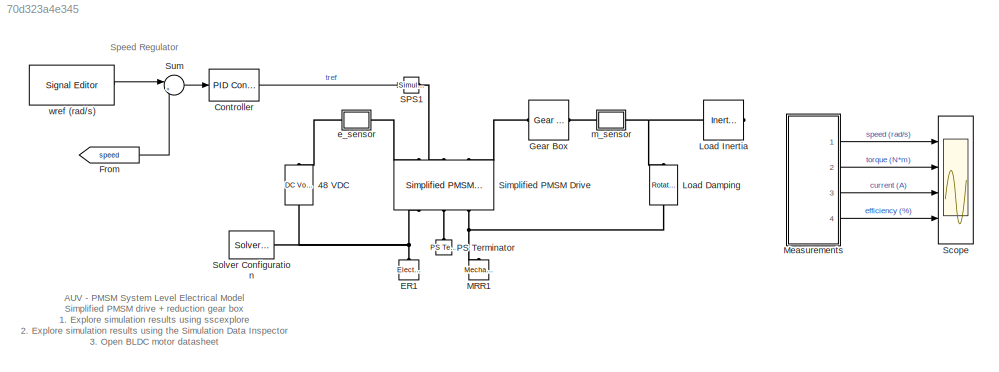
MODEL slx_70d323a4e345
KIND model
CONFIG AbsTol = auto
CONFIG EnableMultiTasking = off
CONFIG FixedStep = auto
CONFIG MaxStep = auto
CONFIG MinStep = auto
CONFIG RelTol = 1e-3
CONFIG SampleTimeConstraint = Unconstrained
CONFIG Solver = ode23t
CONFIG SolverName = ode23t
CONFIG StartTime = 0.0
CONFIG StopTime = 10
BLOCK [Reference] 48 VDC  REF=fl_lib/Electrical/Electrical Sources/DC Voltage Source
  NameLocation = right
  Ports = [0, 0, 0, 0, 0, 1, 1]
  SourceBlock = fl_lib/Electrical/Electrical Sources/DC Voltage Source
  SourceProductBaseCode = SS
  SourceType = DC Voltage Source
BLOCK [Reference] Controller  REF=simulink/Continuous/PID Controller
  Ports = [1, 1]
  SourceBlock = simulink/Continuous/PID Controller
  SourceProductBaseCode = SL
  SourceType = PID 1dof
BLOCK [Reference] ER1  REF=fl_lib/Electrical/Electrical Elements/Electrical Reference
  NameLocation = right
  Ports = [0, 0, 0, 0, 0, 1]
  SourceBlock = fl_lib/Electrical/Electrical Elements/Electrical Reference
  SourceProductName = Foundation Library
  SourceType = Electrical Reference
BLOCK [From] From
  GotoTag = speed
  TagVisibility = global
BLOCK [Reference] Gear Box  REF=fl_lib/Mechanical/Mechanisms/Gear Box
  Ports = [0, 0, 0, 0, 0, 1, 1]
  SourceBlock = fl_lib/Mechanical/Mechanisms/Gear Box
  SourceProductBaseCode = SS
  SourceType = Gear Box
BLOCK [Reference] Load Damping  REF=fl_lib/Mechanical/Rotational Elements/Rotational Damper
  NameLocation = right
  Ports = [0, 0, 0, 0, 0, 1, 1]
  SourceBlock = fl_lib/Mechanical/Rotational Elements/Rotational Damper
  SourceProductBaseCode = SS
  SourceType = Rotational Damper
BLOCK [Reference] Load Inertia  REF=fl_lib/Mechanical/Rotational Elements/Inertia
  Ports = [0, 0, 0, 0, 0, 1]
  SourceBlock = fl_lib/Mechanical/Rotational Elements/Inertia
  SourceProductBaseCode = SS
  SourceType = Inertia
BLOCK [Reference] MRR1  REF=fl_lib/Mechanical/Rotational Elements/Mechanical
Rotational Reference
  NameLocation = right
  Ports = [0, 0, 0, 0, 0, 1]
  SourceBlock = fl_lib/Mechanical/Rotational Elements/Mechanical\nRotational Reference
  SourceProductBaseCode = SS
  SourceType = Mechanical\nRotational Reference
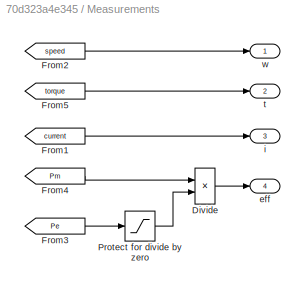
BLOCK [SubSystem] Measurements
  Ports = [0, 4]
  RequestExecContextInheritance = off
BLOCK [Product] Measurements/Divide
  Inputs = */
  Ports = [2, 1]
BLOCK [From] Measurements/From1
  GotoTag = current
  TagVisibility = global
BLOCK [From] Measurements/From2
  GotoTag = speed
  TagVisibility = global
BLOCK [From] Measurements/From3
  GotoTag = Pe
  TagVisibility = global
BLOCK [From] Measurements/From4
  GotoTag = Pm
  TagVisibility = global
BLOCK [From] Measurements/From5
  GotoTag = torque
  TagVisibility = global
BLOCK [Saturate] Measurements/Protect for divide by zero
  LowerLimit = 1e-3
  UpperLimit = inf
BLOCK [Outport] Measurements/eff
  Port = 4
BLOCK [Outport] Measurements/i
  Port = 3
BLOCK [Outport] Measurements/t
  Port = 2
BLOCK [Outport] Measurements/w
BLOCK [Reference] PS Terminator  REF=fl_lib/Physical Signals/Sinks/PS Terminator
  NameLocation = left
  Ports = [0, 0, 0, 0, 0, 1]
  SourceBlock = fl_lib/Physical Signals/Sinks/PS Terminator
  SourceProductBaseCode = SS
  SourceType = PS Terminator
BLOCK [Reference] SPS1  REF=nesl_utility/Simulink-PS
Converter
  Ports = [1, 0, 0, 0, 0, 0, 1]
  SourceBlock = nesl_utility/Simulink-PS\nConverter
  SourceProductBaseCode = SS
  SourceType = Simulink-PS\nConverter
BLOCK [Scope] Scope
  Floating = off
  NumInputPorts = 4
  Ports = [4]
  ScopeSpecificationString = Simulink.scopes.TimeScopeBlockCfg('CurrentConfiguration', extmgr.ConfigurationSet(extmgr.Configuration('Core','General UI',true),extmgr.Configuration('Core','Source UI',true),extmgr.Configuration('Sources','WiredSimulink',true,'DataLoggingVariableName','ScopeData1'),extmgr.Configuration('Visuals','Time Domain',true,'SerializedDisplays',{struct('MinYLimReal','-39.275','MaxYLimReal','39.275','YLabel...<+3504ch>
BLOCK [Reference] Simplified PMSM Drive  REF=ee_lib/Electromechanical/Permanent Magnet/Simplified PMSM
Drive
  NameLocation = right
  Ports = [0, 0, 0, 0, 0, 3, 3]
  SourceBlock = ee_lib/Electromechanical/Permanent Magnet/Simplified PMSM\nDrive
  SourceProductBaseCode = PS
  SourceType = Simplified PMSM\nDrive
BLOCK [Reference] Solver Configuration  REF=nesl_utility/Solver
Configuration
  NameLocation = top
  Ports = [0, 0, 0, 0, 0, 0, 1]
  SourceBlock = nesl_utility/Solver\nConfiguration
  SourceProductBaseCode = SS
  SourceType = Solver\nConfiguration
BLOCK [Sum] Sum
  Inputs = |+-
  Ports = [2, 1]
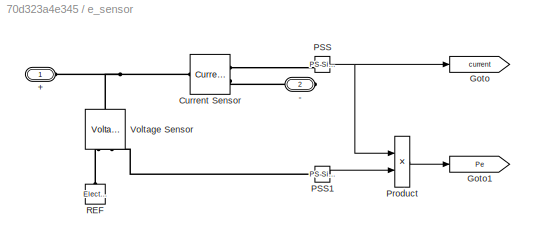
BLOCK [SubSystem] e_sensor
  Ports = [0, 0, 0, 0, 0, 1, 1]
  RequestExecContextInheritance = off
BLOCK [PMIOPort] e_sensor/+
  Side = Left
BLOCK [PMIOPort] e_sensor/-
  Port = 2
  Side = Right
BLOCK [Reference] e_sensor/Current Sensor  REF=fl_lib/Electrical/Electrical Sensors/Current Sensor
  Ports = [0, 0, 0, 0, 0, 1, 2]
  SourceBlock = fl_lib/Electrical/Electrical Sensors/Current Sensor
  SourceProductBaseCode = SS
  SourceType = Current Sensor
BLOCK [Goto] e_sensor/Goto
  GotoTag = current
  TagVisibility = global
BLOCK [Goto] e_sensor/Goto1
  GotoTag = Pe
  TagVisibility = global
BLOCK [Reference] e_sensor/PSS  REF=nesl_utility/PS-Simulink
Converter
  Ports = [0, 1, 0, 0, 0, 1]
  SourceBlock = nesl_utility/PS-Simulink\nConverter
  SourceProductBaseCode = SS
  SourceType = PS-Simulink\nConverter
BLOCK [Reference] e_sensor/PSS1  REF=nesl_utility/PS-Simulink
Converter
  Ports = [0, 1, 0, 0, 0, 1]
  SourceBlock = nesl_utility/PS-Simulink\nConverter
  SourceProductBaseCode = SS
  SourceType = PS-Simulink\nConverter
BLOCK [Product] e_sensor/Product
  Ports = [2, 1]
BLOCK [Reference] e_sensor/REF  REF=fl_lib/Electrical/Electrical Elements/Electrical Reference
  NameLocation = right
  Ports = [0, 0, 0, 0, 0, 1]
  SourceBlock = fl_lib/Electrical/Electrical Elements/Electrical Reference
  SourceProductBaseCode = SS
  SourceType = Electrical Reference
BLOCK [Reference] e_sensor/Voltage Sensor  REF=fl_lib/Electrical/Electrical Sensors/Voltage Sensor
  NameLocation = right
  Ports = [0, 0, 0, 0, 0, 1, 2]
  SourceBlock = fl_lib/Electrical/Electrical Sensors/Voltage Sensor
  SourceProductBaseCode = SS
  SourceType = Voltage Sensor
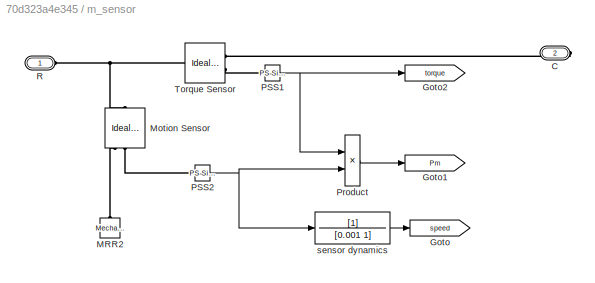
BLOCK [SubSystem] m_sensor
  Ports = [0, 0, 0, 0, 0, 1, 1]
  RequestExecContextInheritance = off
BLOCK [PMIOPort] m_sensor/C
  Port = 2
  Side = Right
BLOCK [Goto] m_sensor/Goto
  GotoTag = speed
  TagVisibility = global
BLOCK [Goto] m_sensor/Goto1
  GotoTag = Pm
  TagVisibility = global
BLOCK [Goto] m_sensor/Goto2
  GotoTag = torque
  TagVisibility = global
BLOCK [Reference] m_sensor/MRR2  REF=fl_lib/Mechanical/Rotational Elements/Mechanical
Rotational Reference
  NameLocation = right
  Ports = [0, 0, 0, 0, 0, 1]
  SourceBlock = fl_lib/Mechanical/Rotational Elements/Mechanical\nRotational Reference
  SourceProductBaseCode = SS
  SourceType = Mechanical\nRotational Reference
BLOCK [Reference] m_sensor/Motion Sensor  REF=fl_lib/Mechanical/Mechanical Sensors/Ideal Rotational
Motion Sensor
  NameLocation = left
  Ports = [0, 0, 0, 0, 0, 1, 3]
  SourceBlock = fl_lib/Mechanical/Mechanical Sensors/Ideal Rotational\nMotion Sensor
  SourceProductBaseCode = SS
  SourceType = Ideal Rotational\nMotion Sensor
BLOCK [Reference] m_sensor/PSS1  REF=nesl_utility/PS-Simulink
Converter
  Ports = [0, 1, 0, 0, 0, 1]
  SourceBlock = nesl_utility/PS-Simulink\nConverter
  SourceProductBaseCode = SS
  SourceType = PS-Simulink\nConverter
BLOCK [Reference] m_sensor/PSS2  REF=nesl_utility/PS-Simulink
Converter
  Ports = [0, 1, 0, 0, 0, 1]
  SourceBlock = nesl_utility/PS-Simulink\nConverter
  SourceProductBaseCode = SS
  SourceType = PS-Simulink\nConverter
BLOCK [Product] m_sensor/Product
  Ports = [2, 1]
BLOCK [PMIOPort] m_sensor/R
  Side = Left
BLOCK [Reference] m_sensor/Torque Sensor  REF=fl_lib/Mechanical/Mechanical Sensors/Ideal Torque Sensor
  Ports = [0, 0, 0, 0, 0, 1, 2]
  SourceBlock = fl_lib/Mechanical/Mechanical Sensors/Ideal Torque Sensor
  SourceProductBaseCode = SS
  SourceType = Ideal Torque Sensor
BLOCK [TransferFcn] m_sensor/sensor dynamics
  Denominator = [0.001 1]
BLOCK [Reference] wref (rad//s)  REF=SignalEditorBlockLib/Signal Editor
  Ports = [0, 1]
  SourceBlock = SignalEditorBlockLib/Signal Editor
  SourceProductBaseCode = SL
  SourceType = SignalEditor
  UserDataPersistent = on
ANNOTATION (root): AUV - PMSM System Level Electrical Model Simplified PMSM drive + reduction gear box 1. Explore simulation results using sscexplore 2. Explore simulation results using the Simulation Data Inspector 3. Open BLDC motor datasheet
ANNOTATION (root): Speed Regulator
LINE Controller:1 -> SPS1:1
LINE From:1 -> Sum:2
LINE Measurements/Divide:1 -> Measurements/eff:1
LINE Measurements/From1:1 -> Measurements/i:1
LINE Measurements/From2:1 -> Measurements/w:1
LINE Measurements/From3:1 -> Measurements/Protect for divide by zero:1
LINE Measurements/From4:1 -> Measurements/Divide:1
LINE Measurements/From5:1 -> Measurements/t:1
LINE Measurements/Protect for divide by zero:1 -> Measurements/Divide:2
LINE Measurements:1 -> Scope:1
LINE Measurements:2 -> Scope:2
LINE Measurements:3 -> Scope:3
LINE Measurements:4 -> Scope:4
LINE Sum:1 -> Controller:1
LINE e_sensor/PSS1:1 -> e_sensor/Product:2
NET e_sensor/PSS:1 -> e_sensor/Goto:1, e_sensor/Product:1
LINE e_sensor/Product:1 -> e_sensor/Goto1:1
NET m_sensor/PSS1:1 -> m_sensor/Goto2:1, m_sensor/Product:1
NET m_sensor/PSS2:1 -> m_sensor/Product:2, m_sensor/sensor dynamics:1
LINE m_sensor/Product:1 -> m_sensor/Goto1:1
LINE m_sensor/sensor dynamics:1 -> m_sensor/Goto:1
LINE wref (rad//s):1 -> Sum:1
PLINE 48 VDC:LConn1 -- e_sensor:LConn1
PNET net1: 48 VDC:RConn1 -- ER1:LConn1 -- Simplified PMSM Drive:RConn1 -- Solver Configuration:RConn1
PLINE Gear Box:LConn1 -- Simplified PMSM Drive:LConn3
PLINE Gear Box:RConn1 -- m_sensor:LConn1
PNET net2: Load Damping:LConn1 -- Load Inertia:LConn1 -- m_sensor:RConn1
PNET net3: Load Damping:RConn1 -- MRR1:LConn1 -- Simplified PMSM Drive:RConn3
PLINE PS Terminator:LConn1 -- Simplified PMSM Drive:RConn2
PLINE SPS1:RConn1 -- Simplified PMSM Drive:LConn2
PLINE Simplified PMSM Drive:LConn1 -- e_sensor:RConn1
PNET net4: e_sensor/+:RConn1 -- e_sensor/Current Sensor:LConn1 -- e_sensor/Voltage Sensor:LConn1
PLINE e_sensor/-:RConn1 -- e_sensor/Current Sensor:RConn2
PLINE e_sensor/Current Sensor:RConn1 -- e_sensor/PSS:LConn1
PLINE e_sensor/PSS1:LConn1 -- e_sensor/Voltage Sensor:RConn1
PLINE e_sensor/REF:LConn1 -- e_sensor/Voltage Sensor:RConn2
PLINE m_sensor/C:RConn1 -- m_sensor/Torque Sensor:RConn1
PLINE m_sensor/MRR2:LConn1 -- m_sensor/Motion Sensor:RConn1
PNET net5: m_sensor/Motion Sensor:LConn1 -- m_sensor/R:RConn1 -- m_sensor/Torque Sensor:LConn1
PLINE m_sensor/Motion Sensor:RConn2 -- m_sensor/PSS2:LConn1
PLINE m_sensor/PSS1:LConn1 -- m_sensor/Torque Sensor:RConn2
note: NET lines group one-source signal fan-out (src -> all destinations, sorted); 1:1 wires keep LINE; PNET lines group multi-terminal physical nets as a canonical sorted terminal list (undirected conserving connections); 2-terminal nets keep the pairwise PLINE form
